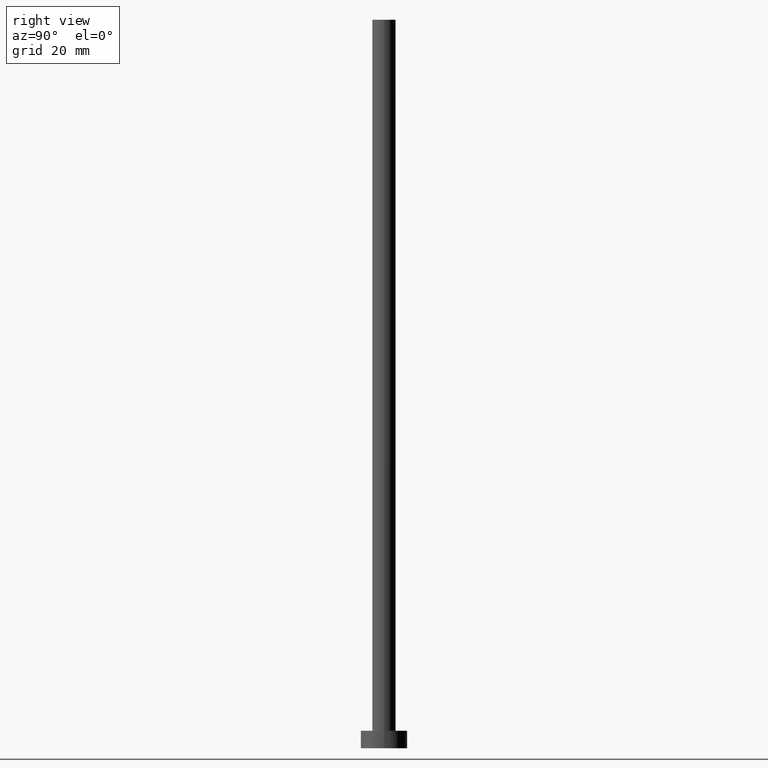
[diagram: clean part render]
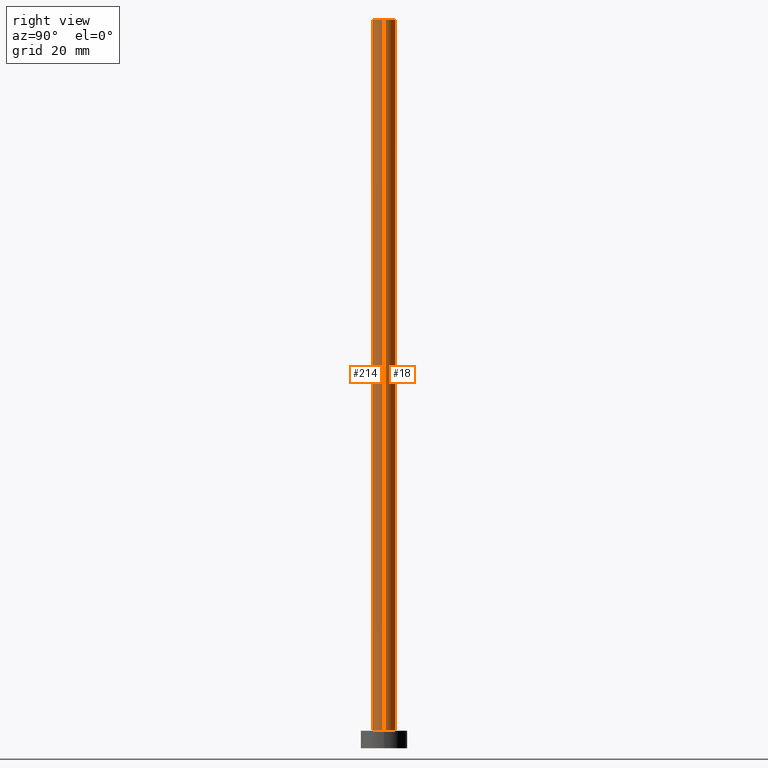
[diagram: same view with one multi-face feature highlighted, each face labeled with its STEP entity id]
A machine part, right view. The highlighted faces form ONE feature: a constant-radius fillet chain: 2 tangent blend faces with common blend radius 2 mm. The faces share edges in the B-rep.
Their STEP definitions:
[1] entity #18 (Cylinder):
#1 = DIRECTION ( 'NONE',  ( 0.000000000000000000, 0.000000000000000000, 1.000000000000000000 ) ) ;
#18 = ADVANCED_FACE ( 'NONE', ( #55 ), #20, .T. ) ;
#20 = CYLINDRICAL_SURFACE ( 'NONE', #189, 2.000000000000000000 ) ;
#27 = CARTESIAN_POINT ( 'NONE',  ( 0.000000000000000000, 0.000000000000000000, 3.000000000000000000 ) ) ;
#39 = CARTESIAN_POINT ( 'NONE',  ( -2.000000000000000000, 0.000000000000000000, 125.0000000000000000 ) ) ;
#42 = DIRECTION ( 'NONE',  ( 1.000000000000000000, 0.000000000000000000, 0.000000000000000000 ) ) ;
#51 = VERTEX_POINT ( 'NONE', #57 ) ;
#55 = FACE_OUTER_BOUND ( 'NONE', #162, .T. ) ;
#57 = CARTESIAN_POINT ( 'NONE',  ( -2.000000000000000000, 0.000000000000000000, 3.000000000000000000 ) ) ;
#63 = VECTOR ( 'NONE', #218, 1000.000000000000000 ) ;
#80 = CARTESIAN_POINT ( 'NONE',  ( 0.000000000000000000, 0.000000000000000000, 125.0000000000000000 ) ) ;
#85 = VERTEX_POINT ( 'NONE', #195 ) ;
#87 = VERTEX_POINT ( 'NONE', #237 ) ;
#94 = DIRECTION ( 'NONE',  ( 0.000000000000000000, 0.000000000000000000, 1.000000000000000000 ) ) ;
#100 = ORIENTED_EDGE ( 'NONE', *, *, #154, .F. ) ;
#110 = EDGE_CURVE ( 'NONE', #85, #188, #146, .T. ) ;
#112 = ORIENTED_EDGE ( 'NONE', *, *, #176, .T. ) ;
#116 = DIRECTION ( 'NONE',  ( -0.000000000000000000, -0.000000000000000000, -1.000000000000000000 ) ) ;
#118 = CARTESIAN_POINT ( 'NONE',  ( 2.000000000000000000, 2.449293598294705921E-16, 125.0000000000000000 ) ) ;
#119 = CARTESIAN_POINT ( 'NONE',  ( -2.000000000000000000, 0.000000000000000000, 125.0000000000000000 ) ) ;
#130 = VECTOR ( 'NONE', #116, 1000.000000000000000 ) ;
#131 = CARTESIAN_POINT ( 'NONE',  ( 0.000000000000000000, 0.000000000000000000, 125.0000000000000000 ) ) ;
#139 = LINE ( 'NONE', #39, #63 ) ;
#146 = CIRCLE ( 'NONE', #197, 2.000000000000000000 ) ;
#147 = CIRCLE ( 'NONE', #228, 2.000000000000000000 ) ;
#154 = EDGE_CURVE ( 'NONE', #188, #51, #139, .T. ) ;
#162 = EDGE_LOOP ( 'NONE', ( #255, #112, #206, #100 ) ) ;
#171 = DIRECTION ( 'NONE',  ( -0.000000000000000000, -0.000000000000000000, -1.000000000000000000 ) ) ;
#172 = DIRECTION ( 'NONE',  ( 1.000000000000000000, 0.000000000000000000, 0.000000000000000000 ) ) ;
#176 = EDGE_CURVE ( 'NONE', #85, #87, #199, .T. ) ;
#187 = EDGE_CURVE ( 'NONE', #87, #51, #147, .T. ) ;
#188 = VERTEX_POINT ( 'NONE', #119 ) ;
#189 = AXIS2_PLACEMENT_3D ( 'NONE', #131, #171, #253 ) ;
#195 = CARTESIAN_POINT ( 'NONE',  ( 2.000000000000000000, 2.449293598294705921E-16, 125.0000000000000000 ) ) ;
#197 = AXIS2_PLACEMENT_3D ( 'NONE', #80, #1, #172 ) ;
#199 = LINE ( 'NONE', #118, #130 ) ;
#206 = ORIENTED_EDGE ( 'NONE', *, *, #187, .T. ) ;
#218 = DIRECTION ( 'NONE',  ( -0.000000000000000000, -0.000000000000000000, -1.000000000000000000 ) ) ;
#228 = AXIS2_PLACEMENT_3D ( 'NONE', #27, #94, #42 ) ;
#237 = CARTESIAN_POINT ( 'NONE',  ( 2.000000000000000000, 2.449293598294705921E-16, 3.000000000000000000 ) ) ;
#253 = DIRECTION ( 'NONE',  ( -1.000000000000000000, 0.000000000000000000, 0.000000000000000000 ) ) ;
#255 = ORIENTED_EDGE ( 'NONE', *, *, #110, .F. ) ;
[2] entity #214 (Cylinder):
#7 = CIRCLE ( 'NONE', #86, 2.000000000000000000 ) ;
#9 = CYLINDRICAL_SURFACE ( 'NONE', #136, 2.000000000000000000 ) ;
#13 = ORIENTED_EDGE ( 'NONE', *, *, #154, .T. ) ;
#24 = CARTESIAN_POINT ( 'NONE',  ( 0.000000000000000000, 0.000000000000000000, 3.000000000000000000 ) ) ;
#28 = EDGE_LOOP ( 'NONE', ( #83, #236, #13, #101 ) ) ;
#39 = CARTESIAN_POINT ( 'NONE',  ( -2.000000000000000000, 0.000000000000000000, 125.0000000000000000 ) ) ;
#51 = VERTEX_POINT ( 'NONE', #57 ) ;
#52 = CARTESIAN_POINT ( 'NONE',  ( 0.000000000000000000, 0.000000000000000000, 125.0000000000000000 ) ) ;
#57 = CARTESIAN_POINT ( 'NONE',  ( -2.000000000000000000, 0.000000000000000000, 3.000000000000000000 ) ) ;
#63 = VECTOR ( 'NONE', #218, 1000.000000000000000 ) ;
#65 = AXIS2_PLACEMENT_3D ( 'NONE', #149, #204, #164 ) ;
#83 = ORIENTED_EDGE ( 'NONE', *, *, #176, .F. ) ;
#85 = VERTEX_POINT ( 'NONE', #195 ) ;
#86 = AXIS2_PLACEMENT_3D ( 'NONE', #24, #97, #124 ) ;
#87 = VERTEX_POINT ( 'NONE', #237 ) ;
#97 = DIRECTION ( 'NONE',  ( 0.000000000000000000, 0.000000000000000000, 1.000000000000000000 ) ) ;
#101 = ORIENTED_EDGE ( 'NONE', *, *, #209, .T. ) ;
#102 = DIRECTION ( 'NONE',  ( -0.000000000000000000, -0.000000000000000000, -1.000000000000000000 ) ) ;
#116 = DIRECTION ( 'NONE',  ( -0.000000000000000000, -0.000000000000000000, -1.000000000000000000 ) ) ;
#118 = CARTESIAN_POINT ( 'NONE',  ( 2.000000000000000000, 2.449293598294705921E-16, 125.0000000000000000 ) ) ;
#119 = CARTESIAN_POINT ( 'NONE',  ( -2.000000000000000000, 0.000000000000000000, 125.0000000000000000 ) ) ;
#124 = DIRECTION ( 'NONE',  ( 1.000000000000000000, 0.000000000000000000, 0.000000000000000000 ) ) ;
#130 = VECTOR ( 'NONE', #116, 1000.000000000000000 ) ;
#136 = AXIS2_PLACEMENT_3D ( 'NONE', #52, #102, #207 ) ;
#139 = LINE ( 'NONE', #39, #63 ) ;
#149 = CARTESIAN_POINT ( 'NONE',  ( 0.000000000000000000, 0.000000000000000000, 125.0000000000000000 ) ) ;
#154 = EDGE_CURVE ( 'NONE', #188, #51, #139, .T. ) ;
#161 = FACE_OUTER_BOUND ( 'NONE', #28, .T. ) ;
#164 = DIRECTION ( 'NONE',  ( 1.000000000000000000, 0.000000000000000000, 0.000000000000000000 ) ) ;
#176 = EDGE_CURVE ( 'NONE', #85, #87, #199, .T. ) ;
#188 = VERTEX_POINT ( 'NONE', #119 ) ;
#195 = CARTESIAN_POINT ( 'NONE',  ( 2.000000000000000000, 2.449293598294705921E-16, 125.0000000000000000 ) ) ;
#199 = LINE ( 'NONE', #118, #130 ) ;
#204 = DIRECTION ( 'NONE',  ( 0.000000000000000000, 0.000000000000000000, 1.000000000000000000 ) ) ;
#207 = DIRECTION ( 'NONE',  ( -1.000000000000000000, 0.000000000000000000, 0.000000000000000000 ) ) ;
#209 = EDGE_CURVE ( 'NONE', #51, #87, #7, .T. ) ;
#214 = ADVANCED_FACE ( 'NONE', ( #161 ), #9, .T. ) ;
#218 = DIRECTION ( 'NONE',  ( -0.000000000000000000, -0.000000000000000000, -1.000000000000000000 ) ) ;
#236 = ORIENTED_EDGE ( 'NONE', *, *, #244, .F. ) ;
#237 = CARTESIAN_POINT ( 'NONE',  ( 2.000000000000000000, 2.449293598294705921E-16, 3.000000000000000000 ) ) ;
#244 = EDGE_CURVE ( 'NONE', #188, #85, #248, .T. ) ;
#248 = CIRCLE ( 'NONE', #65, 2.000000000000000000 ) ;